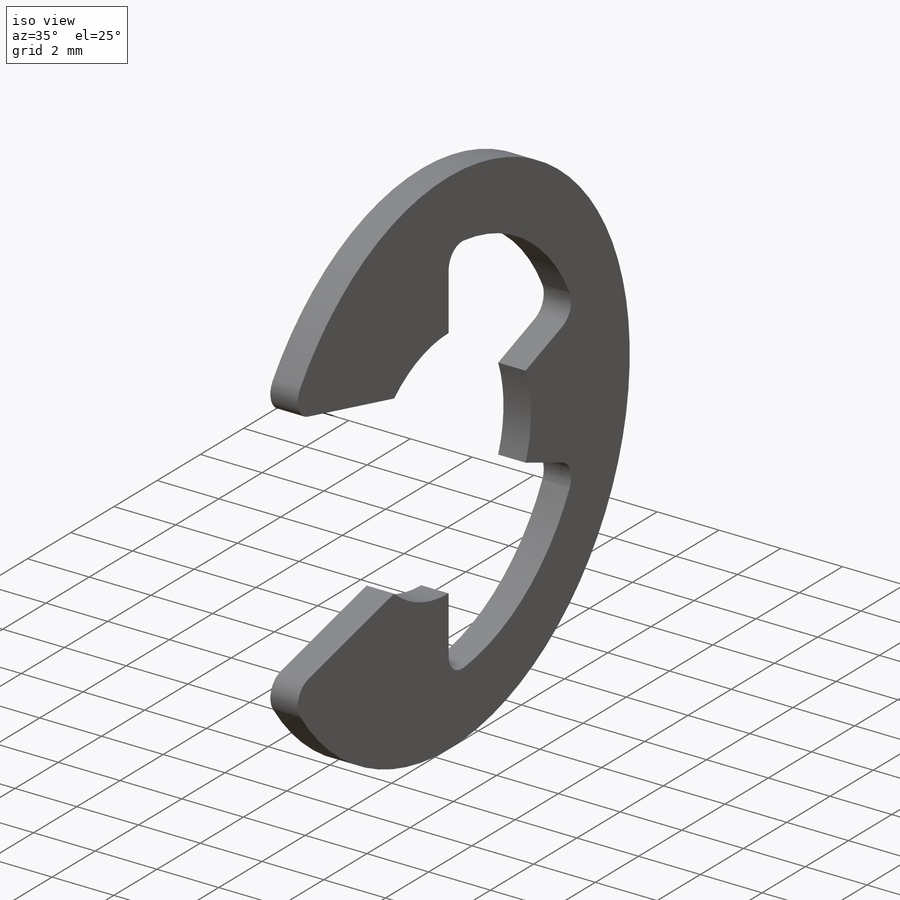
[diagram: iso view]
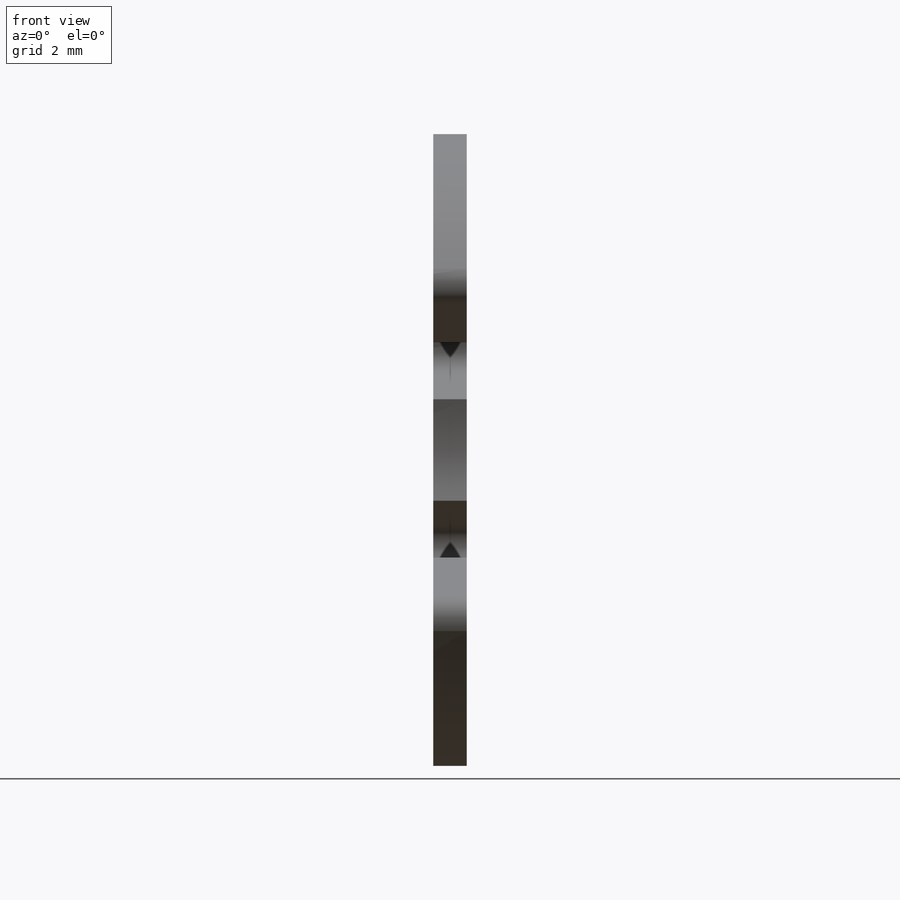
[diagram: front view]
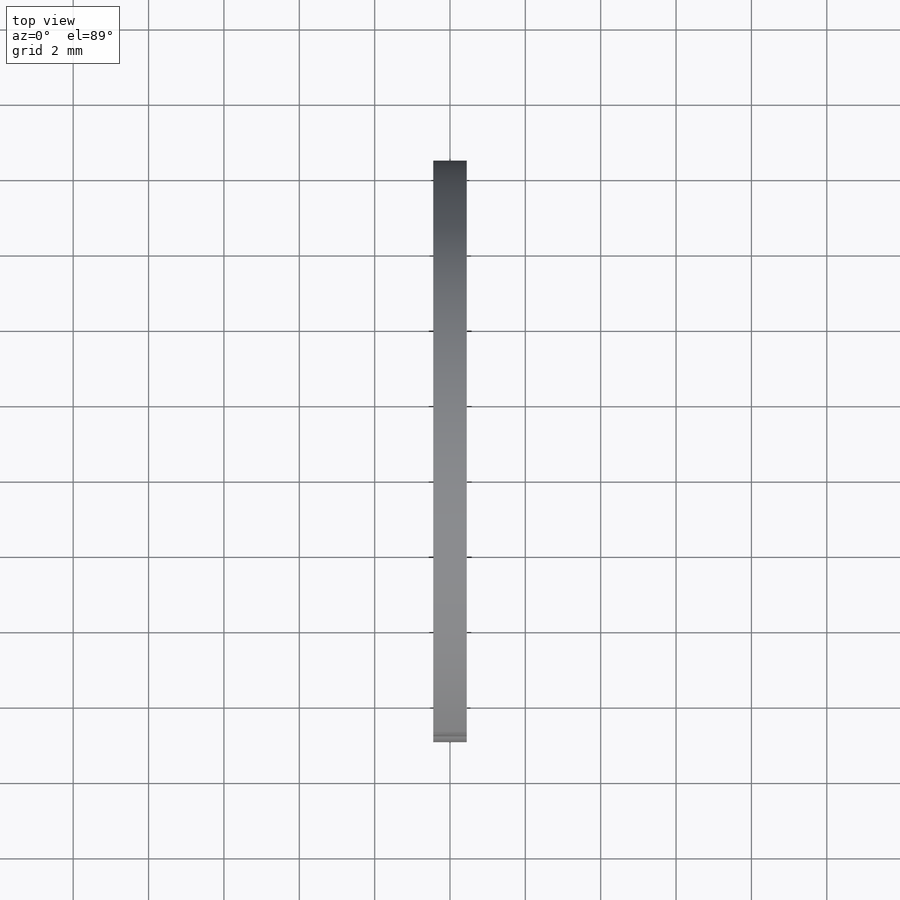
[diagram: top view]
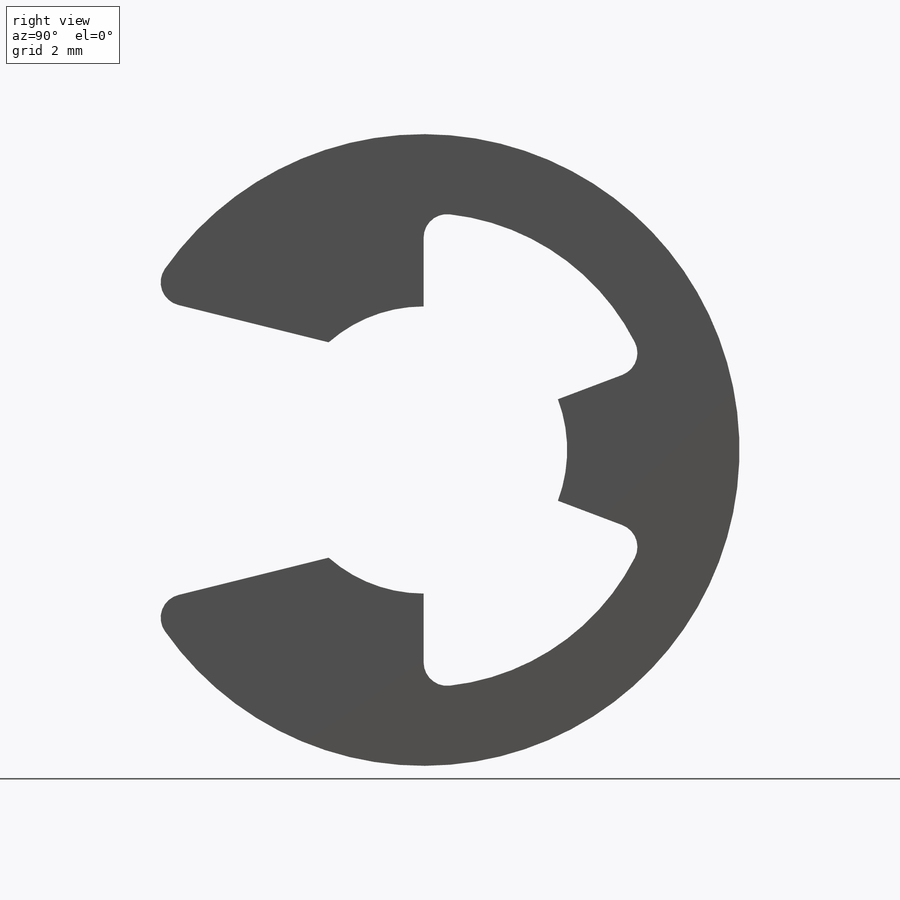
[diagram: right view]
SOLIDWORKS PART (.sldprt)
format: sldprt  version: not decoded by parser v0  size: 280,064 bytes
history: native  units: mm
features: sketch x2, material x1, extrude x1, fillet x1, revolve x1 (+13 scaffold rows collapsed)
feature tree (19):
  scaffold x13  (default folders/planes/origin — collapsed)
  material  "Plain Carbon Steel"
  sketch  "Sketch1"  dims[c1.OD=~95.467344mm c1.L=17.272mm c1.Df=~44.936653mm c1.D=7.62mm c1.D1=4.1148mm c1.D5=1.1938mm c2.D1=~6.292645mm c2.OD=16.764mm c2.D2=3.4671mm c3.D2=~60.241448deg c4.D2=2.3368mm c4.D3=~6.844632mm c4.D4=~0.839061mm c4.D5=~4.638511mm c5.D2=~27.72918mm c5.D3=~2.26822mm c5.D5=~0.509803mm c5.D4=~12.285631mm c6.D3=~12.285631mm c6.D2=~4.332178mm c7.D3=~12.285631mm c7.D4=~0.516565mm c8.D3=5.715mm]
  extrude  "Extrude1"  Depth=0.889mm
  fillet  "Fillet1"  Radius=0.6223mm
  sketch  "Sketch3"  dims[c1.Ds=19.05mm c1.Dg=7.6962mm c1.W=0.9906mm c1.D1=5.3975mm c1.D2=14.859mm c1.D3=~0.855501mm c2.D3=45.0deg c2.D1=~3.71475mm c3.D3=~1.439371mm c4.D3=45.0deg c4.Ds=9.525mm]
  revolve  "Revolve2"  Angle=360deg
decode coverage: 5 of 5 modeling features carry decoded parameters
note: ~ marks probable driven/reference dimensions
note: suppression state not decoded; provenance and decode notes live in map.json
